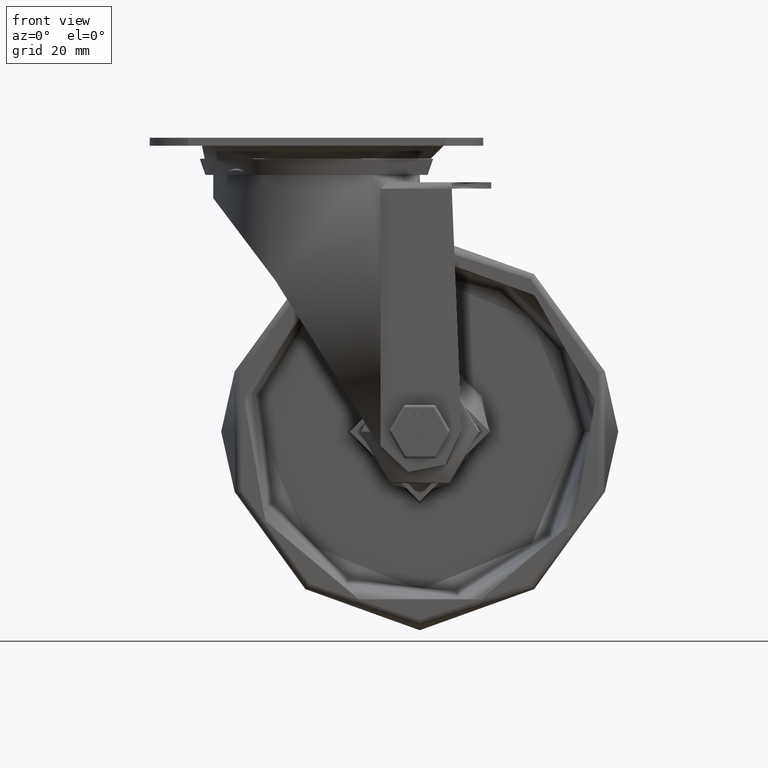
[diagram: clean part render]
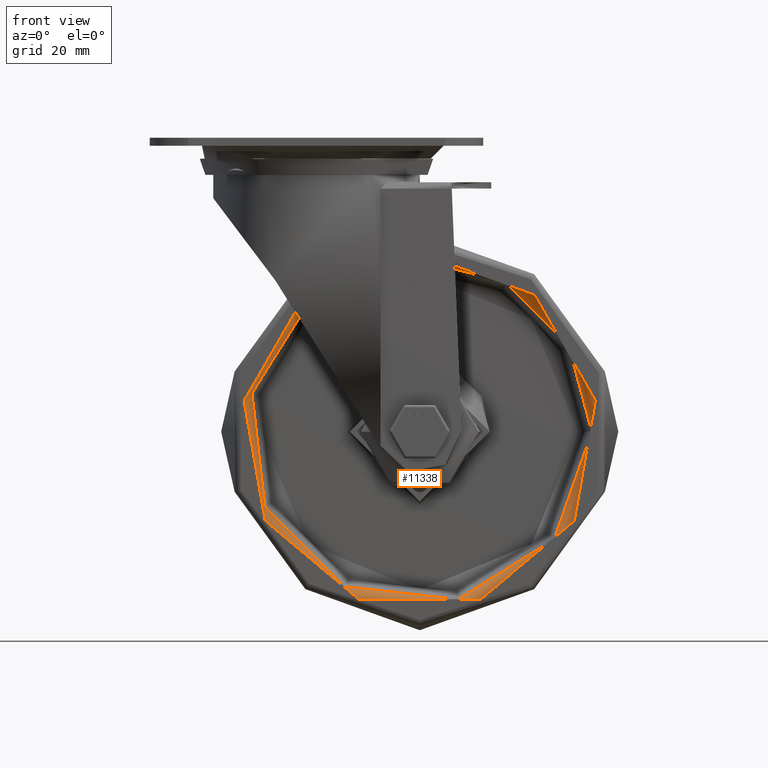
[diagram: same view with one face highlighted and labeled with its STEP entity id]
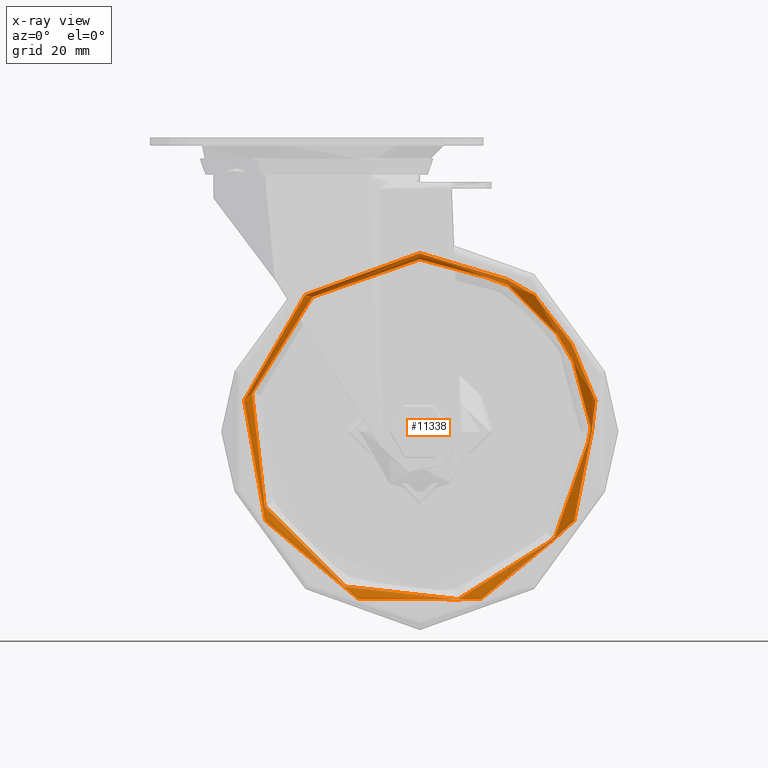
[diagram: x-ray of the same camera — body ghosted, the highlighted face saturated]
A machine part, front view. The second image highlights one B-rep face of the part: STEP entity #11338.
The next image is the same camera in x-ray: the body ghosted, the highlighted face saturated — about 0% of this face is hidden behind the body in this view.
In plain terms, the highlighted toroidal blend (fillet) surface has major radius 56.1396 mm and minor (blend) radius 2 mm.
Its self-contained STEP definition (entity closure, byte-faithful):
#1391=TOROIDAL_SURFACE('',#12300,56.1396078054371,2.);
#1524=FACE_OUTER_BOUND('',#2250,.T.);
#2250=EDGE_LOOP('',(#8257,#8258,#8259,#8260,#8261));
#4528=CIRCLE('',#12301,56.1396078054371);
#4529=CIRCLE('',#12302,2.);
#4530=CIRCLE('',#12303,54.1784464540553);
#4531=CIRCLE('',#12304,54.1784464540553);
#5057=VERTEX_POINT('',#17145);
#5058=VERTEX_POINT('',#17147);
#5059=VERTEX_POINT('',#17149);
#6275=EDGE_CURVE('',#5057,#5057,#4528,.T.);
#6276=EDGE_CURVE('',#5057,#5058,#4529,.T.);
#6277=EDGE_CURVE('',#5058,#5059,#4530,.T.);
#6278=EDGE_CURVE('',#5059,#5058,#4531,.T.);
#8257=ORIENTED_EDGE('',*,*,#6275,.F.);
#8258=ORIENTED_EDGE('',*,*,#6276,.T.);
#8259=ORIENTED_EDGE('',*,*,#6277,.T.);
#8260=ORIENTED_EDGE('',*,*,#6278,.T.);
#8261=ORIENTED_EDGE('',*,*,#6276,.F.);
#11338=ADVANCED_FACE('',(#1524),#1391,.T.);
#12300=AXIS2_PLACEMENT_3D('',#17144,#13666,#13667);
#12301=AXIS2_PLACEMENT_3D('',#17146,#13668,#13669);
#12302=AXIS2_PLACEMENT_3D('',#17148,#13670,#13671);
#12303=AXIS2_PLACEMENT_3D('',#17150,#13672,#13673);
#12304=AXIS2_PLACEMENT_3D('',#17151,#13674,#13675);
#13666=DIRECTION('center_axis',(-3.71352796603441E-15,1.,0.));
#13667=DIRECTION('ref_axis',(0.,0.,-1.));
#13668=DIRECTION('center_axis',(-3.71352796603441E-15,1.,0.));
#13669=DIRECTION('ref_axis',(-1.,-3.71352796603441E-15,0.));
#13670=DIRECTION('center_axis',(1.,3.71352796603441E-15,-1.22464679914735E-16));
#13671=DIRECTION('ref_axis',(1.22464679914735E-16,0.,1.));
#13672=DIRECTION('center_axis',(-3.71352796603441E-15,1.,0.));
#13673=DIRECTION('ref_axis',(-1.,-3.71352796603441E-15,0.));
#13674=DIRECTION('center_axis',(-3.71352796603441E-15,1.,0.));
#13675=DIRECTION('ref_axis',(-1.,-3.71352796603441E-15,0.));
#17144=CARTESIAN_POINT('Origin',(7.16815522954286E-14,-16.5,0.));
#17145=CARTESIAN_POINT('',(8.5983727327929E-14,-18.5,56.1396078054371));
#17146=CARTESIAN_POINT('Origin',(7.91086082274974E-14,-18.5,0.));
#17147=CARTESIAN_POINT('',(7.97730639035547E-14,-16.8922322702764,54.1784464540553));
#17148=CARTESIAN_POINT('Origin',(7.85566713958602E-14,-16.5,56.1396078054371));
#17149=CARTESIAN_POINT('',(54.1784464540553,-16.8922322702762,6.6349461032735E-15));
#17150=CARTESIAN_POINT('Origin',(7.31381178002811E-14,-16.8922322702764,
0.));
#17151=CARTESIAN_POINT('Origin',(7.31381178002811E-14,-16.8922322702764,
0.));